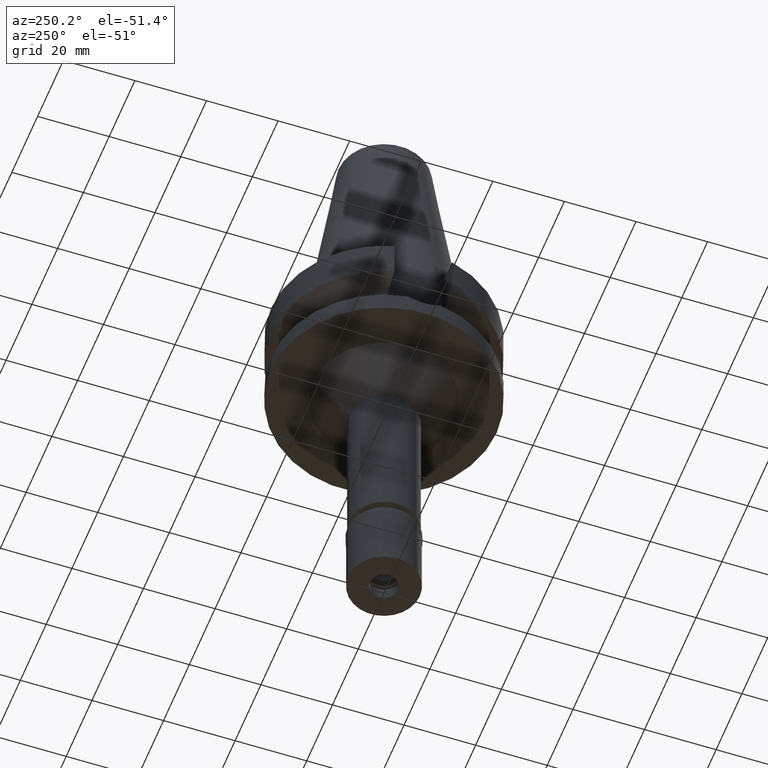
[diagram: clean part render]
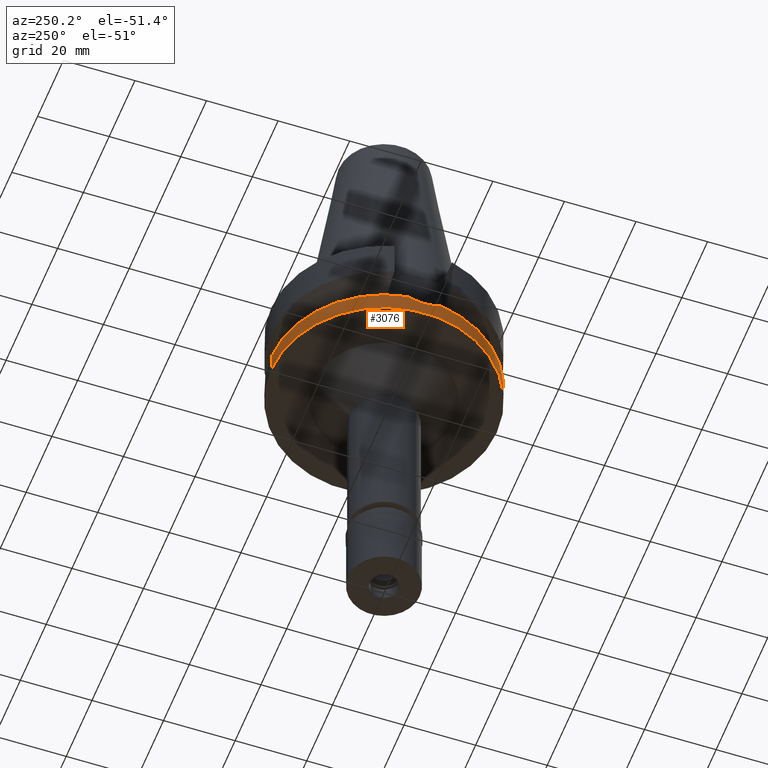
[diagram: same view with one face highlighted and labeled with its STEP entity id]
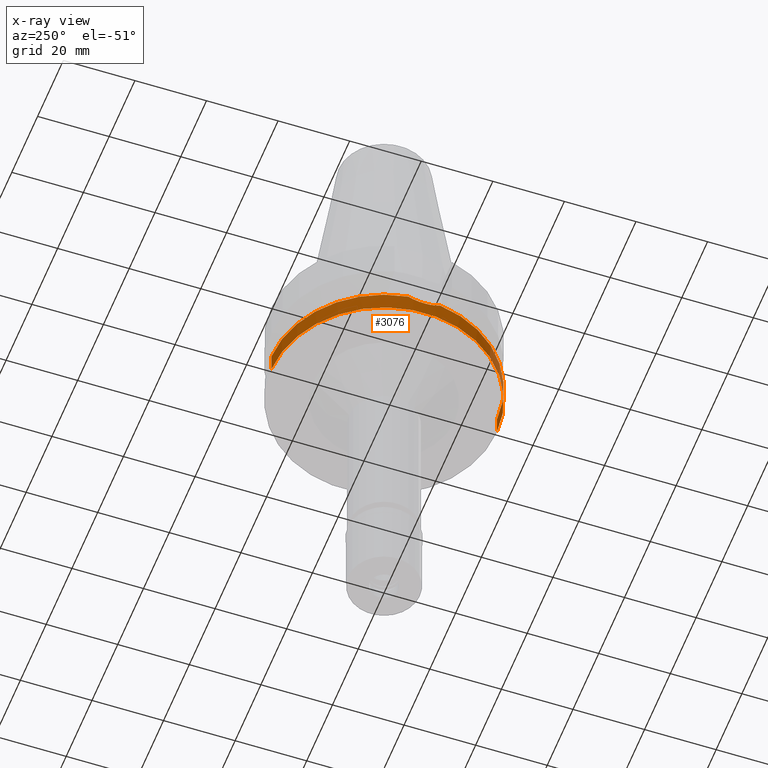
[diagram: x-ray of the same camera — body ghosted, the highlighted face saturated]
A machine part, auxiliary view. The second image highlights one B-rep face of the part: STEP entity #3076.
The next image is the same camera in x-ray: the body ghosted, the highlighted face saturated — about 0% of this face is hidden behind the body in this view.
In plain terms, the highlighted cylindrical surface (partial cylindrical patch) has radius 31.5 mm, axis along (0, 0, -1).
Its self-contained STEP definition (entity closure, byte-faithful):
#101 = DIRECTION ( 'NONE',  ( 0.0000000000000000000, -1.000000000000000000, 0.0000000000000000000 ) ) ;
#186 = AXIS2_PLACEMENT_3D ( 'NONE', #1933, #1721, #968 ) ;
#203 = CARTESIAN_POINT ( 'NONE',  ( -31.50001712581907398, -0.7926377105448936256, -23.00007367292327487 ) ) ;
#209 = VERTEX_POINT ( 'NONE', #1136 ) ;
#297 = ORIENTED_EDGE ( 'NONE', *, *, #1479, .F. ) ;
#323 = VECTOR ( 'NONE', #600, 1000.000000000000000 ) ;
#340 = LINE ( 'NONE', #1330, #323 ) ;
#407 = CARTESIAN_POINT ( 'NONE',  ( -31.22685096289054130, 4.152915296767247355, -21.85769496597323425 ) ) ;
#479 = VERTEX_POINT ( 'NONE', #2425 ) ;
#600 = DIRECTION ( 'NONE',  ( 0.0000000000000000000, 1.099151708819000049E-13, -1.000000000000000000 ) ) ;
#703 = CARTESIAN_POINT ( 'NONE',  ( -31.39942185726652468, 2.522461037788649829, -22.59713496818544698 ) ) ;
#732 = VERTEX_POINT ( 'NONE', #2663 ) ;
#824 = AXIS2_PLACEMENT_3D ( 'NONE', #2339, #1111, #1861 ) ;
#883 = VERTEX_POINT ( 'NONE', #2714 ) ;
#933 = B_SPLINE_CURVE_WITH_KNOTS ( 'NONE', 3,
 ( #1560, #1101, #1298, #3013, #1066, #2619, #1168, #1868, #203, #2582, #2597, #703, #1379, #2390, #1194, #2344, #407, #2164 ),
 .UNSPECIFIED., .F., .F.,
 ( 4, 2, 2, 2, 2, 2, 2, 2, 4 ),
 ( 0.0000000000000000000, 0.06249999999999990286, 0.1249999999999996808, 0.2499999999999996114, 0.4999999999999996669, 0.7499999999999996669, 0.8124999999999998890, 0.8750000000000000000, 1.000000000000000000 ),
 .UNSPECIFIED. ) ;
#945 = CARTESIAN_POINT ( 'NONE',  ( -31.17899877608999759, 4.485536235554000051, -21.63449434733000132 ) ) ;
#968 = DIRECTION ( 'NONE',  ( 0.0000000000000000000, -1.000000000000000000, 0.0000000000000000000 ) ) ;
#978 = CARTESIAN_POINT ( 'NONE',  ( -31.17899877608999759, -4.485536235554000051, -21.63449434733000132 ) ) ;
#979 = ORIENTED_EDGE ( 'NONE', *, *, #2262, .T. ) ;
#1066 = CARTESIAN_POINT ( 'NONE',  ( -31.29155447049827998, -3.622343373435083613, -22.14169372397563507 ) ) ;
#1101 = CARTESIAN_POINT ( 'NONE',  ( -31.20293917622267799, -4.319126319953648263, -21.74616138863461146 ) ) ;
#1111 = DIRECTION ( 'NONE',  ( 0.0000000000000000000, 0.0000000000000000000, 1.000000000000000000 ) ) ;
#1136 = CARTESIAN_POINT ( 'NONE',  ( 0.0000000000000000000, -31.50000000000000000, -27.00000000000000000 ) ) ;
#1145 = CIRCLE ( 'NONE', #1957, 31.50000000000000000 ) ;
#1168 = CARTESIAN_POINT ( 'NONE',  ( -31.38545356137714037, -2.710830974668719584, -22.54018147751278534 ) ) ;
#1194 = CARTESIAN_POINT ( 'NONE',  ( -31.33117704905989598, 3.261986796018977230, -22.31220532314072358 ) ) ;
#1197 = CIRCLE ( 'NONE', #1447, 31.50000000000001421 ) ;
#1298 = CARTESIAN_POINT ( 'NONE',  ( -31.22605532497854597, -4.148997608096792078, -21.85135424778554025 ) ) ;
#1330 = CARTESIAN_POINT ( 'NONE',  ( 0.0000000000000000000, 31.50000000000000000, -21.63449434733000132 ) ) ;
#1335 = EDGE_CURVE ( 'NONE', #883, #2162, #1145, .T. ) ;
#1379 = CARTESIAN_POINT ( 'NONE',  ( -31.38373223179079119, 2.710340438068331359, -22.53261021834003230 ) ) ;
#1447 = AXIS2_PLACEMENT_3D ( 'NONE', #2125, #1580, #2554 ) ;
#1479 = EDGE_CURVE ( 'NONE', #883, #209, #2352, .T. ) ;
#1508 = DIRECTION ( 'NONE',  ( 0.0000000000000000000, 0.0000000000000000000, -1.000000000000000000 ) ) ;
#1560 = CARTESIAN_POINT ( 'NONE',  ( -31.17899877608999759, -4.485536235554000051, -21.63449434733000132 ) ) ;
#1580 = DIRECTION ( 'NONE',  ( 0.0000000000000000000, 0.0000000000000000000, -1.000000000000000000 ) ) ;
#1721 = DIRECTION ( 'NONE',  ( 0.0000000000000000000, 0.0000000000000000000, -1.000000000000000000 ) ) ;
#1861 = DIRECTION ( 'NONE',  ( 0.0000000000000000000, 1.000000000000000000, 0.0000000000000000000 ) ) ;
#1868 = CARTESIAN_POINT ( 'NONE',  ( -31.47006487637062833, -1.570419047057915574, -22.88512826096852848 ) ) ;
#1933 = CARTESIAN_POINT ( 'NONE',  ( 0.0000000000000000000, 0.0000000000000000000, 0.0000000000000000000 ) ) ;
#1957 = AXIS2_PLACEMENT_3D ( 'NONE', #2465, #1508, #101 ) ;
#1993 = CYLINDRICAL_SURFACE ( 'NONE', #186, 31.50000000000000000 ) ;
#2059 = DIRECTION ( 'NONE',  ( 0.0000000000000000000, -1.099151708819000049E-13, -1.000000000000000000 ) ) ;
#2082 = EDGE_CURVE ( 'NONE', #732, #209, #2204, .T. ) ;
#2125 = CARTESIAN_POINT ( 'NONE',  ( 0.0000000000000000000, 0.0000000000000000000, -21.63449434733000132 ) ) ;
#2162 = VERTEX_POINT ( 'NONE', #978 ) ;
#2164 = CARTESIAN_POINT ( 'NONE',  ( -31.17899877608999759, 4.485536235554000051, -21.63449434733000132 ) ) ;
#2204 = CIRCLE ( 'NONE', #824, 31.50000000000000000 ) ;
#2262 = EDGE_CURVE ( 'NONE', #2552, #479, #1197, .T. ) ;
#2339 = CARTESIAN_POINT ( 'NONE',  ( 0.0000000000000000000, 0.0000000000000000000, -27.00000000000000000 ) ) ;
#2344 = CARTESIAN_POINT ( 'NONE',  ( -31.27141571670194509, 3.805444996444594885, -22.05502278725632337 ) ) ;
#2352 = LINE ( 'NONE', #2555, #2897 ) ;
#2390 = CARTESIAN_POINT ( 'NONE',  ( -31.34953813619469187, 3.080755221410464095, -22.38983688785517501 ) ) ;
#2425 = CARTESIAN_POINT ( 'NONE',  ( 0.0000000000000000000, 31.50000000000000000, -21.63449434733000132 ) ) ;
#2438 = ORIENTED_EDGE ( 'NONE', *, *, #2620, .T. ) ;
#2465 = CARTESIAN_POINT ( 'NONE',  ( 0.0000000000000000000, 0.0000000000000000000, -21.63449434733000132 ) ) ;
#2468 = ORIENTED_EDGE ( 'NONE', *, *, #2786, .T. ) ;
#2552 = VERTEX_POINT ( 'NONE', #945 ) ;
#2554 = DIRECTION ( 'NONE',  ( -0.9898094849552905306, 0.1423979757318985240, 0.0000000000000000000 ) ) ;
#2555 = CARTESIAN_POINT ( 'NONE',  ( 0.0000000000000000000, -31.50000000000000000, -21.63449434733000132 ) ) ;
#2582 = CARTESIAN_POINT ( 'NONE',  ( -31.49998285948857202, 0.7939983117110116506, -22.99992626958001196 ) ) ;
#2597 = CARTESIAN_POINT ( 'NONE',  ( -31.47014099270053222, 1.569798848116693790, -22.88544914042746115 ) ) ;
#2619 = CARTESIAN_POINT ( 'NONE',  ( -31.35088823423123827, -3.082664059812797230, -22.39703177998983463 ) ) ;
#2620 = EDGE_CURVE ( 'NONE', #479, #732, #340, .T. ) ;
#2661 = ORIENTED_EDGE ( 'NONE', *, *, #2082, .T. ) ;
#2663 = CARTESIAN_POINT ( 'NONE',  ( 0.0000000000000000000, 31.50000000000000000, -27.00000000000000000 ) ) ;
#2714 = CARTESIAN_POINT ( 'NONE',  ( 0.0000000000000000000, -31.50000000000000000, -21.63449434733000132 ) ) ;
#2786 = EDGE_CURVE ( 'NONE', #2162, #2552, #933, .T. ) ;
#2897 = VECTOR ( 'NONE', #2059, 1000.000000000000000 ) ;
#2901 = EDGE_LOOP ( 'NONE', ( #979, #2438, #2661, #297, #3090, #2468 ) ) ;
#3013 = CARTESIAN_POINT ( 'NONE',  ( -31.27028656753994795, -3.801301131789587728, -22.04879160178010977 ) ) ;
#3076 = ADVANCED_FACE ( 'NONE', ( #3110 ), #1993, .T. ) ;
#3090 = ORIENTED_EDGE ( 'NONE', *, *, #1335, .T. ) ;
#3110 = FACE_OUTER_BOUND ( 'NONE', #2901, .T. ) ;